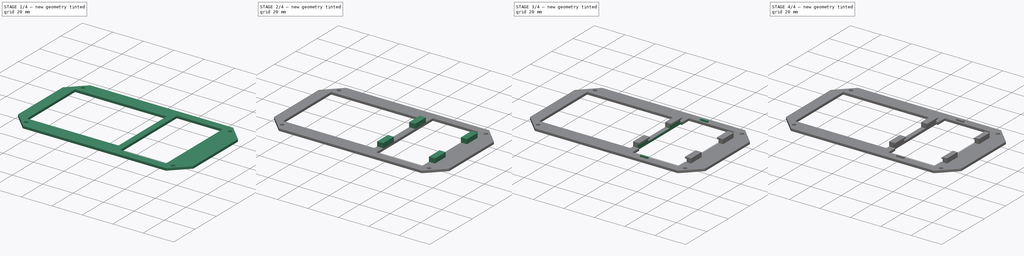
[diagram: build sequence overview — one tinted view per stage of 4, left to right]
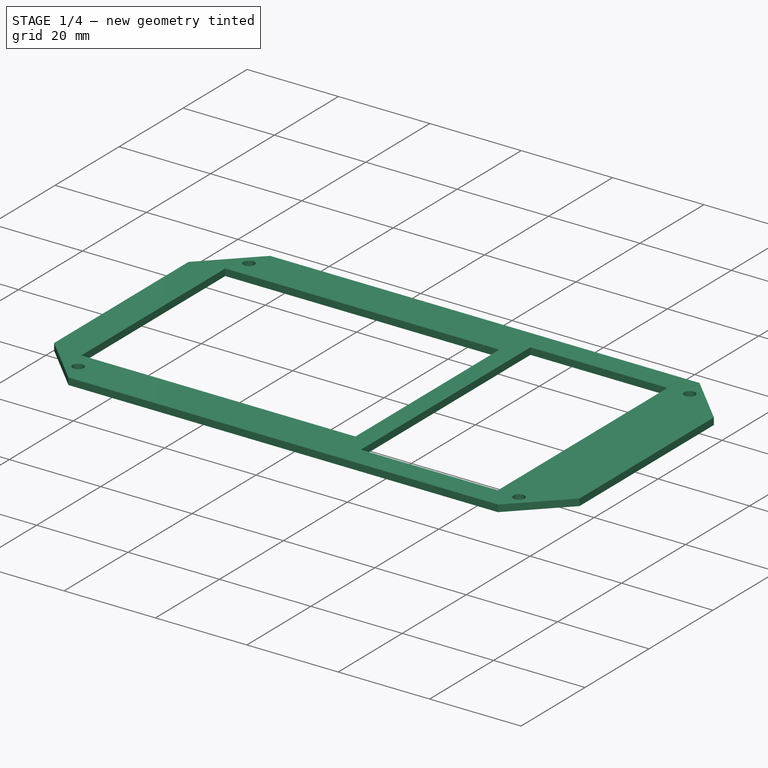
[diagram: stage 1 of 4 — iso view after this stage's code; geometry added in this stage tinted green]
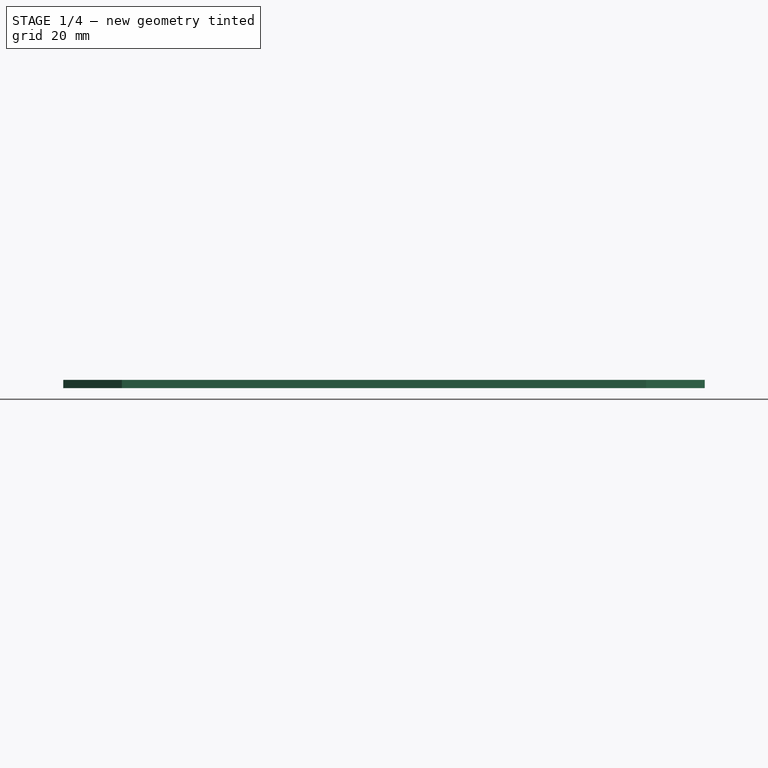
[diagram: stage 1 of 4 — front view after this stage's code; geometry added in this stage tinted green]
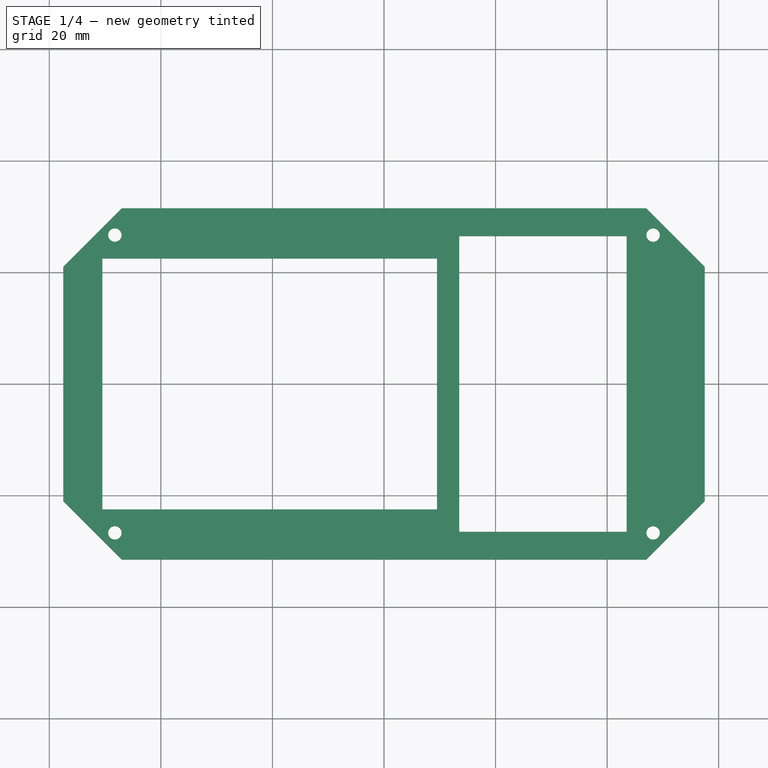
[diagram: stage 1 of 4 — top view after this stage's code; geometry added in this stage tinted green]
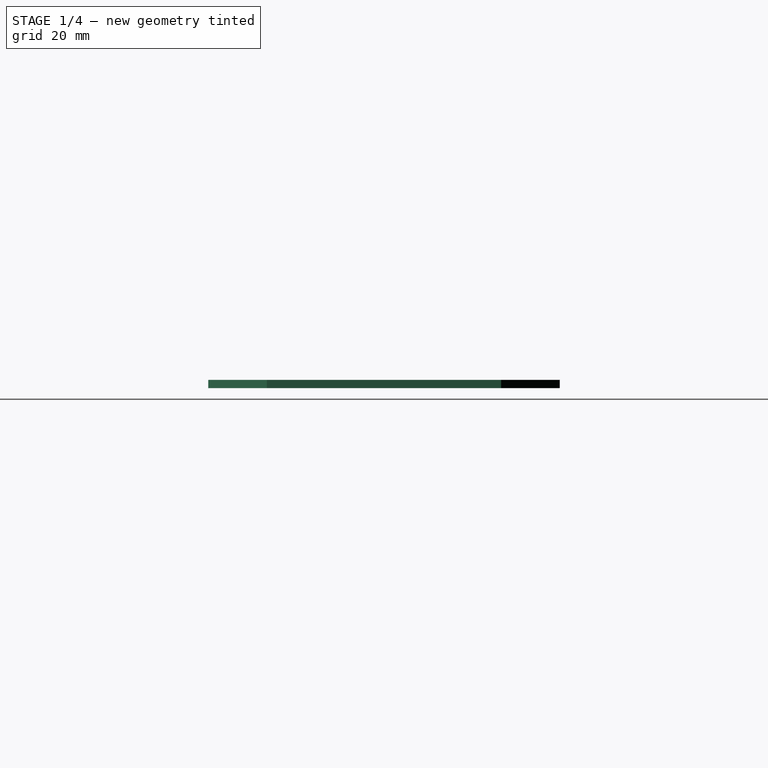
[diagram: stage 1 of 4 — right view after this stage's code; geometry added in this stage tinted green]
FCSTD DOCUMENT  (FreeCAD 0.16R6712 (Git))
Label: Soporte_interior
License: CreativeCommons Attribution-ShareAlike
LicenseURL: http://creativecommons.org/licenses/by-sa/4.0/
objects: Sketcher::SketchObject×5, PartDesign::Pad×3, PartDesign::Pocket×2, Part::MultiCommon×2, Part::MultiFuse×2, Part::Chamfer×1
note: 20 computed .brp shape members not serialized (recipe doc carries the construction recipe); baked Part::Feature solids carry a one-line shape summary decoded from their .brp

FEATURE [Sketcher::SketchObject] Sketch
  sketch-geometry (12):
    g0: LineSegment StartX=-47 StartY=31.5 StartZ=0 EndX=47 EndY=31.5 EndZ=0
    g1: LineSegment StartX=57.5 StartY=21 StartZ=0 EndX=57.5 EndY=-21 EndZ=0
    g2: LineSegment StartX=47 StartY=-31.5 StartZ=0 EndX=-47 EndY=-31.5 EndZ=0
    g3: LineSegment StartX=-57.5 StartY=-21 StartZ=0 EndX=-57.5 EndY=21 EndZ=0
    g4: Circle CenterX=-48.25 CenterY=26.7 CenterZ=0 NormalX=0 NormalY=0 NormalZ=1 Radius=1.2
    g5: Circle CenterX=48.25 CenterY=26.7 CenterZ=0 NormalX=0 NormalY=0 NormalZ=1 Radius=1.2
    g6: Circle CenterX=-48.25 CenterY=-26.7 CenterZ=0 NormalX=0 NormalY=0 NormalZ=1 Radius=1.2
    g7: Circle CenterX=48.25 CenterY=-26.7 CenterZ=0 NormalX=0 NormalY=0 NormalZ=1 Radius=1.2
    g8: LineSegment StartX=-47 StartY=31.5 StartZ=0 EndX=-57.5 EndY=21 EndZ=0
    g9: LineSegment StartX=47 StartY=31.5 StartZ=0 EndX=57.5 EndY=21 EndZ=0
    g10: LineSegment StartX=57.5 StartY=-21 StartZ=0 EndX=47 EndY=-31.5 EndZ=0
    g11: LineSegment StartX=-57.5 StartY=-21 StartZ=0 EndX=-47 EndY=-31.5 EndZ=0
  constraints (33):
    c: Horizontal(g0)
    c: Horizontal(g2)
    c: Vertical(g1)
    c: Vertical(g3)
    c: Equal(g4,g6)
    c: Equal(g6,g7)
    c: Equal(g7,g5)
    c: Radius(g5) = 1.2
    c: DistanceY(g6,g4) = 53.4
    c: Symmetric(g4,g6,g-1)
    c: Symmetric(g5,g7,g-1)
    c: DistanceY(g7,g5) = 53.4
    c: Symmetric(g6,g7,g-2)
    c: DistanceX(g6,g7) = 96.5
    c: Coincident(g8,g0)
    c: Coincident(g8,g3)
    c: Coincident(g9,g0)
    c: Coincident(g9,g1)
    c: Coincident(g10,g1)
    c: Coincident(g10,g2)
    c: Coincident(g11,g3)
    c: Coincident(g11,g2)
    c: Equal(g3,g1)
    c: Equal(g0,g2)
    c: Symmetric(g2,g2,g-2)
    c: Symmetric(g0,g2,g-1)
    c: Symmetric(g1,g1,g-1)
    c: Symmetric(g3,g3,g-1)
    c: DistanceX(g3,g1) = 115
    c: DistanceY(g2,g0) = 63
    c: Symmetric(g3,g1,g-2)
    c: DistanceY(g3,g3) = 42
    c: Angle(g8,g0) = 2.35619
FEATURE [PartDesign::Pad] Pad
  Length = 1.5
  Length2 = 100
  Sketch = -> Sketch
  Type = 0
FEATURE [Sketcher::SketchObject] Sketch001
  ExternalGeometry = -> [Pad]
  Placement = pos=(0,0,1.5) rot=(0,0,1;0rad)
  Support = -> Pad [Face14]
  sketch-geometry (8):
    g0: LineSegment StartX=-50.5 StartY=22.5 StartZ=0 EndX=9.5 EndY=22.5 EndZ=0
    g1: LineSegment StartX=9.5 StartY=22.5 StartZ=0 EndX=9.5 EndY=-22.5 EndZ=0
    g2: LineSegment StartX=9.5 StartY=-22.5 StartZ=0 EndX=-50.5 EndY=-22.5 EndZ=0
    g3: LineSegment StartX=-50.5 StartY=-22.5 StartZ=0 EndX=-50.5 EndY=22.5 EndZ=0
    g4: LineSegment StartX=13.5 StartY=26.5 StartZ=0 EndX=43.5 EndY=26.5 EndZ=0
    g5: LineSegment StartX=43.5 StartY=26.5 StartZ=0 EndX=43.5 EndY=-26.5 EndZ=0
    g6: LineSegment StartX=43.5 StartY=-26.5 StartZ=0 EndX=13.5 EndY=-26.5 EndZ=0
    g7: LineSegment StartX=13.5 StartY=-26.5 StartZ=0 EndX=13.5 EndY=26.5 EndZ=0
  constraints (24):
    c: Coincident(g0,g1)
    c: Coincident(g1,g2)
    c: Coincident(g2,g3)
    c: Coincident(g3,g0)
    c: Horizontal(g0)
    c: Horizontal(g2)
    c: Vertical(g1)
    c: Vertical(g3)
    c: DistanceX(g0,g0) = 60
    c: DistanceY(g1,g1) = 45
    c: Symmetric(g0,g1,g-1)
    c: Coincident(g4,g5)
    c: Coincident(g5,g6)
    c: Coincident(g6,g7)
    c: Coincident(g7,g4)
    c: Horizontal(g4)
    c: Horizontal(g6)
    c: Vertical(g5)
    c: Vertical(g7)
    c: Symmetric(g4,g6,g-1)
    c: DistanceX(g4,g4) = 30
    c: DistanceY(g5,g5) = 53
    c: DistanceX(g0,g4) = 4
    c: DistanceX(g-3,g0) = 7
FEATURE [PartDesign::Pocket] Pocket
  Length = 5
  Sketch = -> Sketch001
  Type = 0
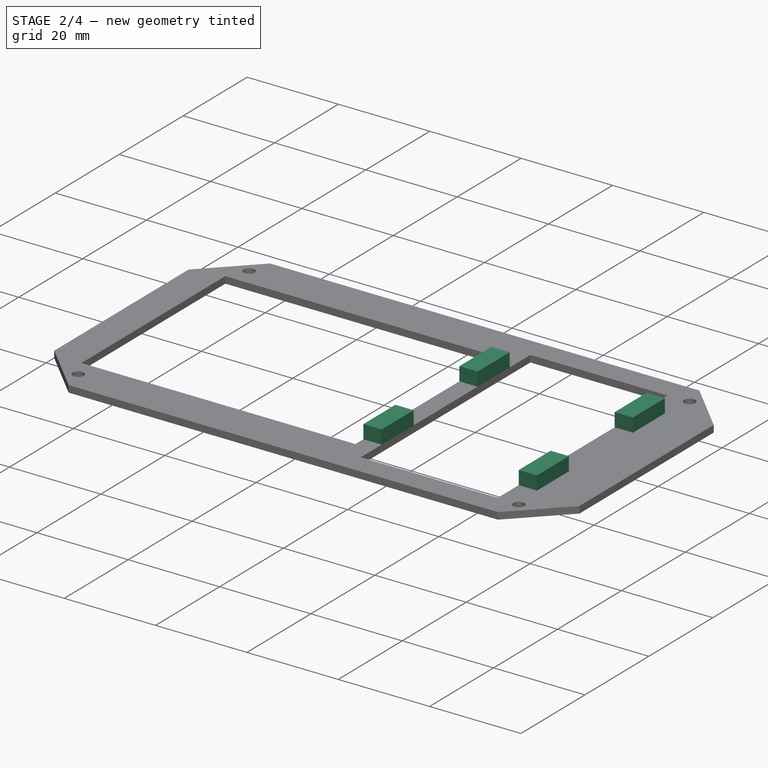
[diagram: stage 2 of 4 — iso view after this stage's code; geometry added in this stage tinted green]
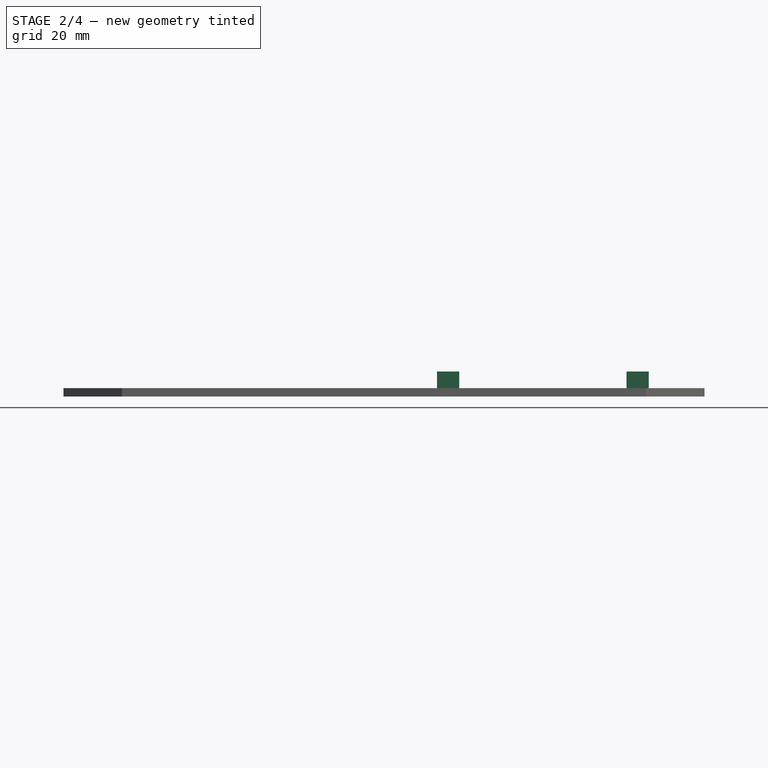
[diagram: stage 2 of 4 — front view after this stage's code; geometry added in this stage tinted green]
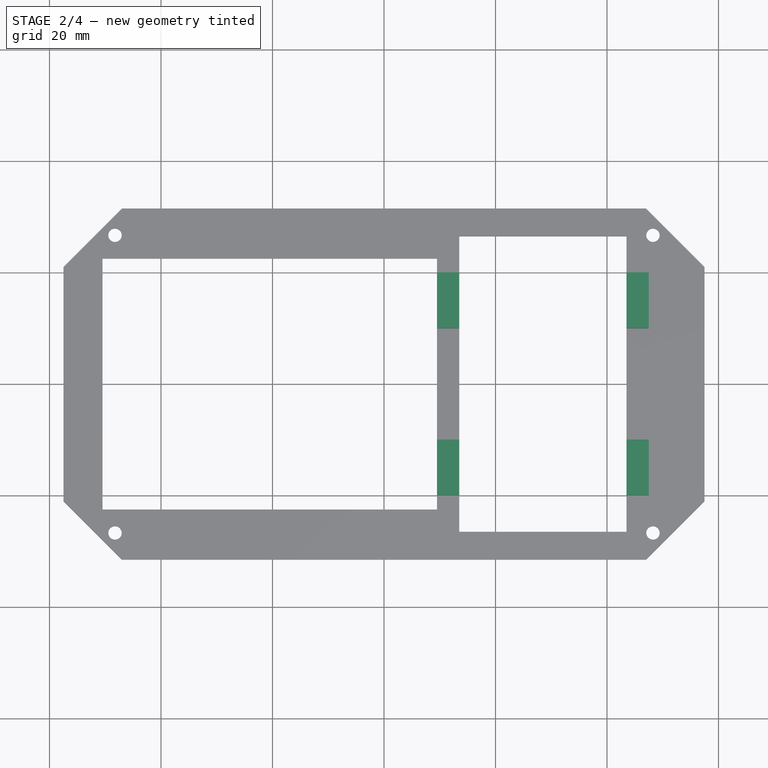
[diagram: stage 2 of 4 — top view after this stage's code; geometry added in this stage tinted green]
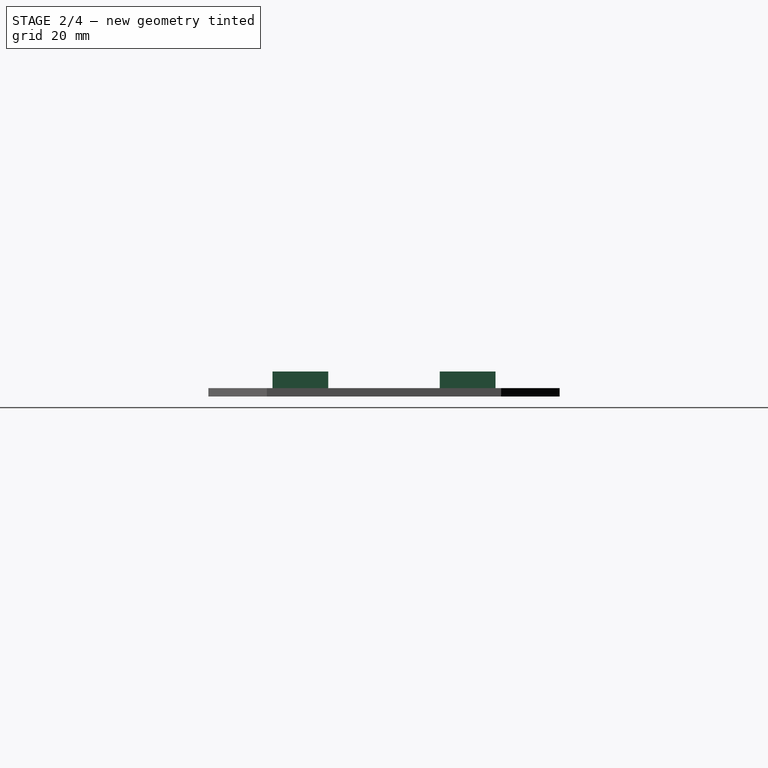
[diagram: stage 2 of 4 — right view after this stage's code; geometry added in this stage tinted green]
FEATURE [Part::MultiCommon] Common
  Shapes = -> [Pad,Pocket]
FEATURE [Sketcher::SketchObject] Sketch002
  ExternalGeometry = -> [Common]
  Placement = pos=(0,0,1.5) rot=(0,0,1;0rad)
  Support = -> Common [Face4]
  sketch-geometry (16):
    g0: LineSegment StartX=9.5 StartY=20 StartZ=0 EndX=13.5 EndY=20 EndZ=0
    g1: LineSegment StartX=13.5 StartY=20 StartZ=0 EndX=13.5 EndY=10 EndZ=0
    g2: LineSegment StartX=13.5 StartY=10 StartZ=0 EndX=9.5 EndY=10 EndZ=0
    g3: LineSegment StartX=9.5 StartY=10 StartZ=0 EndX=9.5 EndY=20 EndZ=0
    g4: LineSegment StartX=9.5 StartY=-10 StartZ=0 EndX=13.5 EndY=-10 EndZ=0
    g5: LineSegment StartX=13.5 StartY=-10 StartZ=0 EndX=13.5 EndY=-20 EndZ=0
    g6: LineSegment StartX=13.5 StartY=-20 StartZ=0 EndX=9.5 EndY=-20 EndZ=0
    g7: LineSegment StartX=9.5 StartY=-20 StartZ=0 EndX=9.5 EndY=-10 EndZ=0
    g8: LineSegment StartX=43.5 StartY=20 StartZ=0 EndX=47.5 EndY=20 EndZ=0
    g9: LineSegment StartX=47.5 StartY=20 StartZ=0 EndX=47.5 EndY=10 EndZ=0
    g10: LineSegment StartX=47.5 StartY=10 StartZ=0 EndX=43.5 EndY=10 EndZ=0
    g11: LineSegment StartX=43.5 StartY=10 StartZ=0 EndX=43.5 EndY=20 EndZ=0
    g12: LineSegment StartX=43.5 StartY=-10 StartZ=0 EndX=47.5 EndY=-10 EndZ=0
    g13: LineSegment StartX=47.5 StartY=-10 StartZ=0 EndX=47.5 EndY=-20 EndZ=0
    g14: LineSegment StartX=47.5 StartY=-20 StartZ=0 EndX=43.5 EndY=-20 EndZ=0
    g15: LineSegment StartX=43.5 StartY=-20 StartZ=0 EndX=43.5 EndY=-10 EndZ=0
  constraints (46):
    c: Coincident(g0,g1)
    c: Coincident(g1,g2)
    c: Coincident(g2,g3)
    c: Coincident(g3,g0)
    c: Horizontal(g0)
    c: Horizontal(g2)
    c: Vertical(g1)
    c: Vertical(g3)
    c: Coincident(g4,g5)
    c: Coincident(g5,g6)
    c: Coincident(g6,g7)
    c: Coincident(g7,g4)
    c: Horizontal(g4)
    c: Horizontal(g6)
    c: Vertical(g5)
    c: Vertical(g7)
    c: Coincident(g8,g9)
    c: Coincident(g9,g10)
    c: Coincident(g10,g11)
    c: Coincident(g11,g8)
    c: Horizontal(g8)
    c: Horizontal(g10)
    c: Vertical(g9)
    c: Vertical(g11)
    c: Coincident(g12,g13)
    c: Coincident(g13,g14)
    c: Coincident(g14,g15)
    c: Coincident(g15,g12)
    c: Horizontal(g12)
    c: Horizontal(g14)
    c: Vertical(g13)
    c: Vertical(g15)
    c: Symmetric(g1,g4,g-1)
    c: Symmetric(g9,g12,g-1)
    c: Equal(g0,g8)
    c: Equal(g8,g12)
    c: Equal(g12,g4)
    c: Equal(g1,g9)
    c: Equal(g9,g13)
    c: Equal(g13,g5)
    c: DistanceY(g9,g9) = 10
    c: DistanceY(g12,g9) = 20
    c: DistanceY(g4,g1) = 20
    c: DistanceX(g0,g0) = 4
    c: DistanceX(g0,g8) = 30
    c: PointOnObject(g0,g-3)
FEATURE [PartDesign::Pad] Pad001
  Length = 3
  Length2 = 100
  Sketch = -> Sketch002
  Type = 0
FEATURE [Part::MultiFuse] Fusion
  Shapes = -> [Pad001,Common]
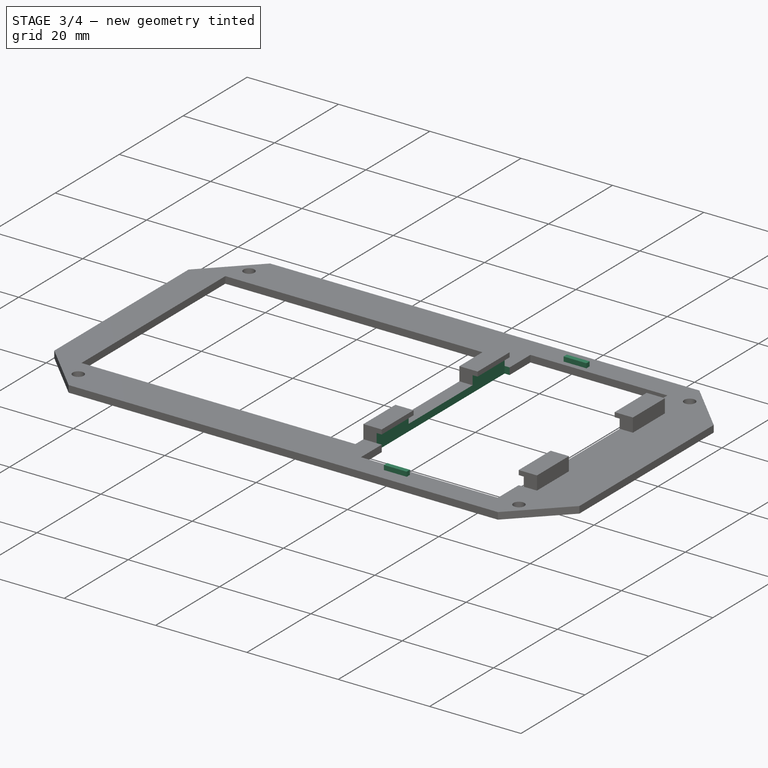
[diagram: stage 3 of 4 — iso view after this stage's code; geometry added in this stage tinted green]
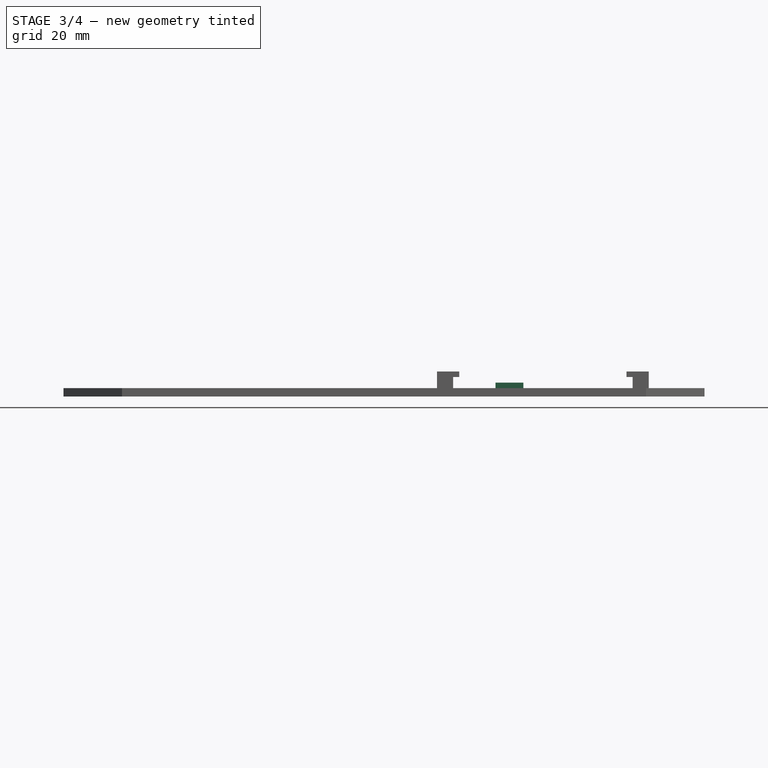
[diagram: stage 3 of 4 — front view after this stage's code; geometry added in this stage tinted green]
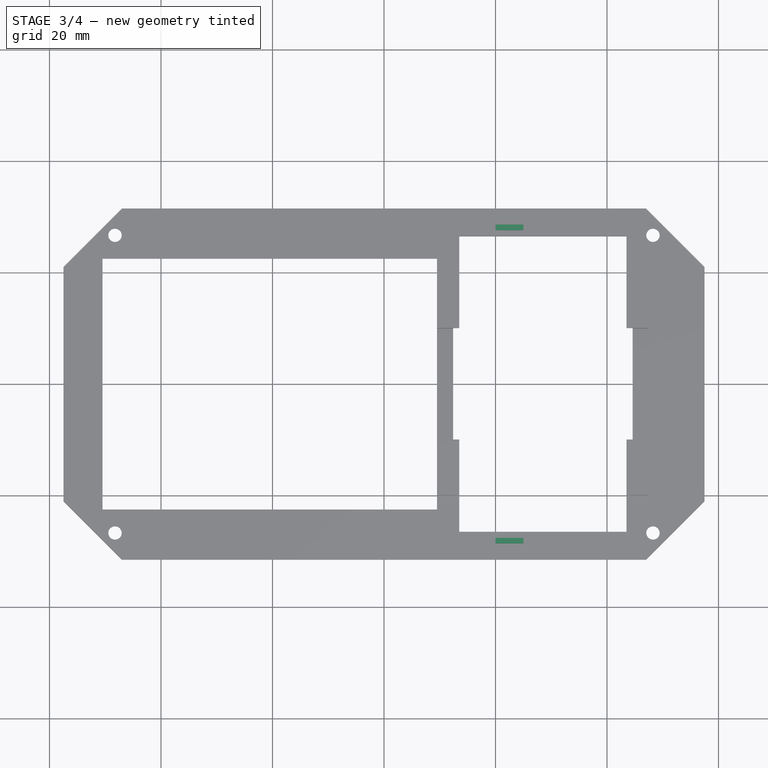
[diagram: stage 3 of 4 — top view after this stage's code; geometry added in this stage tinted green]
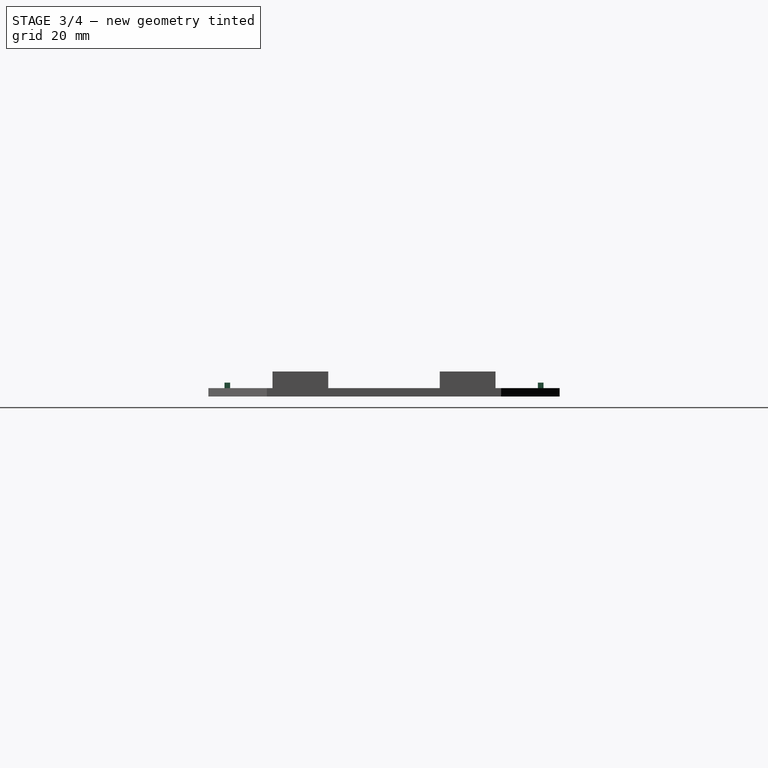
[diagram: stage 3 of 4 — right view after this stage's code; geometry added in this stage tinted green]
FEATURE [Sketcher::SketchObject] Sketch003
  ExternalGeometry = -> [Fusion]
  Placement = pos=(0,0,0) rot=(1,0,0;3.14159rad)
  Support = -> Fusion [Face8]
  sketch-geometry (4):
    g0: LineSegment StartX=12.4 StartY=20 StartZ=0 EndX=44.6 EndY=20 EndZ=0
    g1: LineSegment StartX=44.6 StartY=20 StartZ=0 EndX=44.6 EndY=-20 EndZ=0
    g2: LineSegment StartX=44.6 StartY=-20 StartZ=0 EndX=12.4 EndY=-20 EndZ=0
    g3: LineSegment StartX=12.4 StartY=-20 StartZ=0 EndX=12.4 EndY=20 EndZ=0
  constraints (12):
    c: Coincident(g0,g1)
    c: Coincident(g1,g2)
    c: Coincident(g2,g3)
    c: Coincident(g3,g0)
    c: Horizontal(g0)
    c: Horizontal(g2)
    c: Vertical(g1)
    c: Vertical(g3)
    c: Symmetric(g0,g1,g-1)
    c: DistanceX(g0,g0) = 32.2
    c: DistanceY(g1,g1) = 40
    c: DistanceX(g0,g-3) = 1.1
FEATURE [PartDesign::Pocket] Pocket001
  Length = 3.5
  Sketch = -> Sketch003
  Type = 0
FEATURE [Part::MultiCommon] Common001
  Shapes = -> [Fusion,Pocket001]
FEATURE [Sketcher::SketchObject] Sketch004
  Placement = pos=(0,0,1.5) rot=(0,0,1;0rad)
  Support = -> Common001 [Face11]
  sketch-geometry (8):
    g0: LineSegment StartX=20 StartY=28.6 StartZ=0 EndX=25 EndY=28.6 EndZ=0
    g1: LineSegment StartX=25 StartY=28.6 StartZ=0 EndX=25 EndY=27.6 EndZ=0
    g2: LineSegment StartX=25 StartY=27.6 StartZ=0 EndX=20 EndY=27.6 EndZ=0
    g3: LineSegment StartX=20 StartY=27.6 StartZ=0 EndX=20 EndY=28.6 EndZ=0
    g4: LineSegment StartX=20 StartY=-27.6 StartZ=0 EndX=25 EndY=-27.6 EndZ=0
    g5: LineSegment StartX=25 StartY=-27.6 StartZ=0 EndX=25 EndY=-28.6 EndZ=0
    g6: LineSegment StartX=25 StartY=-28.6 StartZ=0 EndX=20 EndY=-28.6 EndZ=0
    g7: LineSegment StartX=20 StartY=-28.6 StartZ=0 EndX=20 EndY=-27.6 EndZ=0
  constraints (23):
    c: Coincident(g0,g1)
    c: Coincident(g1,g2)
    c: Coincident(g2,g3)
    c: Coincident(g3,g0)
    c: Horizontal(g0)
    c: Horizontal(g2)
    c: Vertical(g1)
    c: Vertical(g3)
    c: Coincident(g4,g5)
    c: Coincident(g5,g6)
    c: Coincident(g6,g7)
    c: Coincident(g7,g4)
    c: Horizontal(g4)
    c: Horizontal(g6)
    c: Vertical(g5)
    c: Vertical(g7)
    c: Equal(g1,g5)
    c: Equal(g2,g6)
    c: Symmetric(g4,g1,g-1)
    c: DistanceX(g0,g0) = 5
    c: DistanceY(g1,g0) = 1
    c: DistanceY(g4,g1) = 55.2
    c: DistanceX(g-1,g0) = 20
FEATURE [PartDesign::Pad] Pad002
  Length = 1
  Length2 = 100
  Sketch = -> Sketch004
  Type = 0
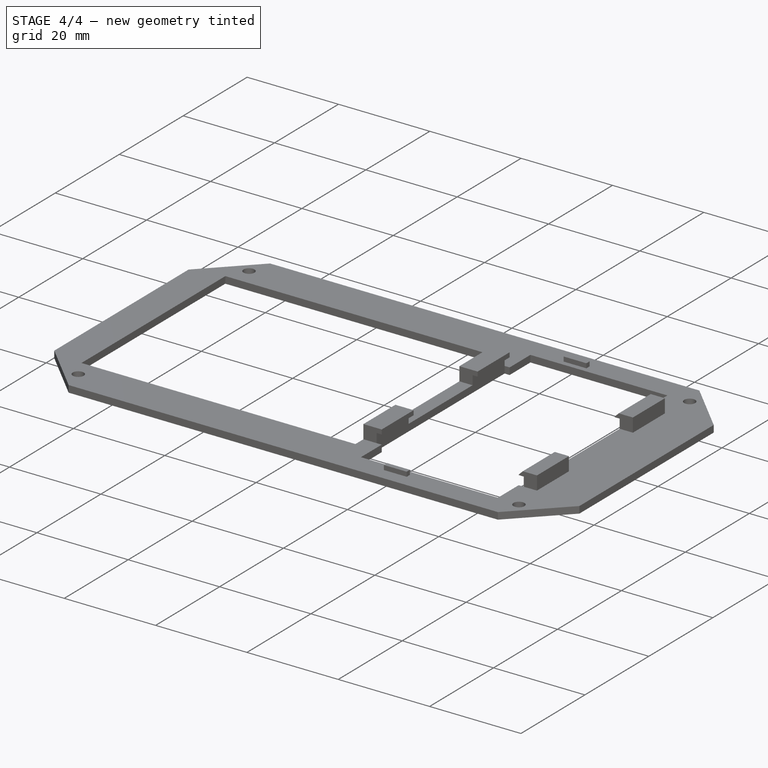
[diagram: stage 4 of 4 — iso view after this stage's code; geometry added in this stage tinted green]
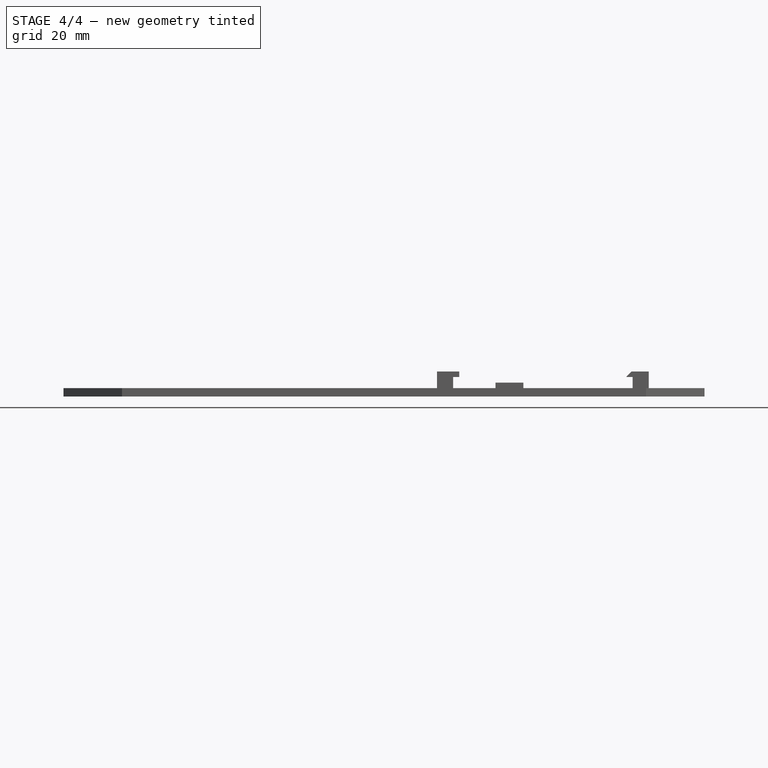
[diagram: stage 4 of 4 — front view after this stage's code; geometry added in this stage tinted green]
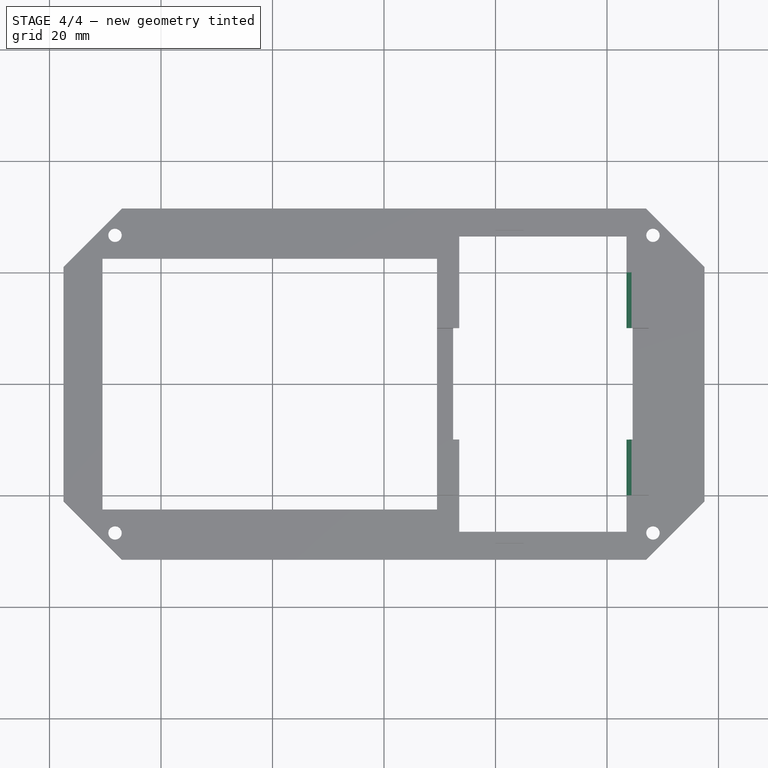
[diagram: stage 4 of 4 — top view after this stage's code; geometry added in this stage tinted green]
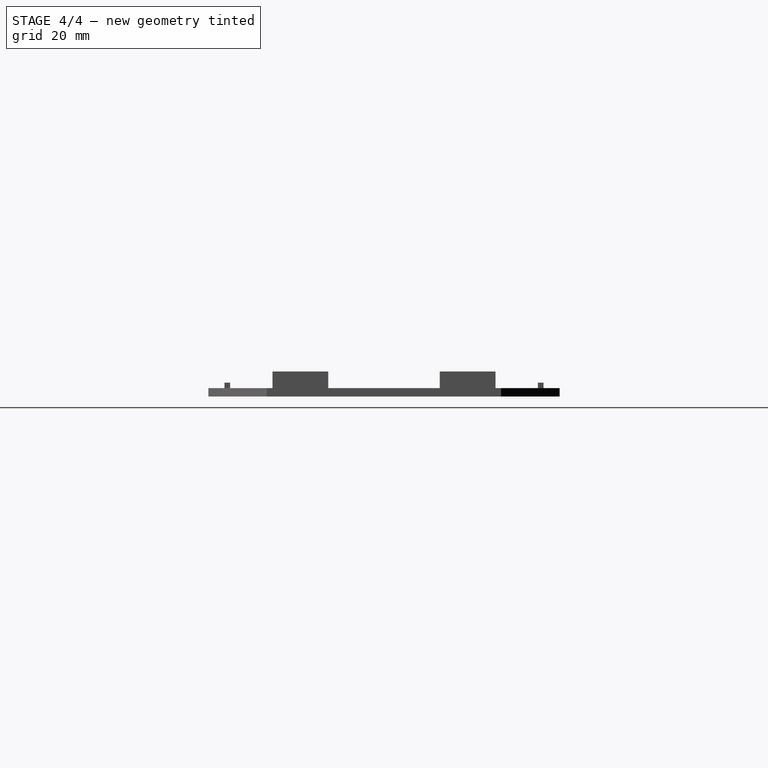
[diagram: stage 4 of 4 — right view after this stage's code; geometry added in this stage tinted green]
FEATURE [Part::MultiFuse] Fusion001
  Shapes = -> [Pad002,Common001]
FEATURE [Part::Chamfer] Chamfer
  Base = -> Fusion001
  Edges = 2 edges r=0.9: [Edge156,Edge175]
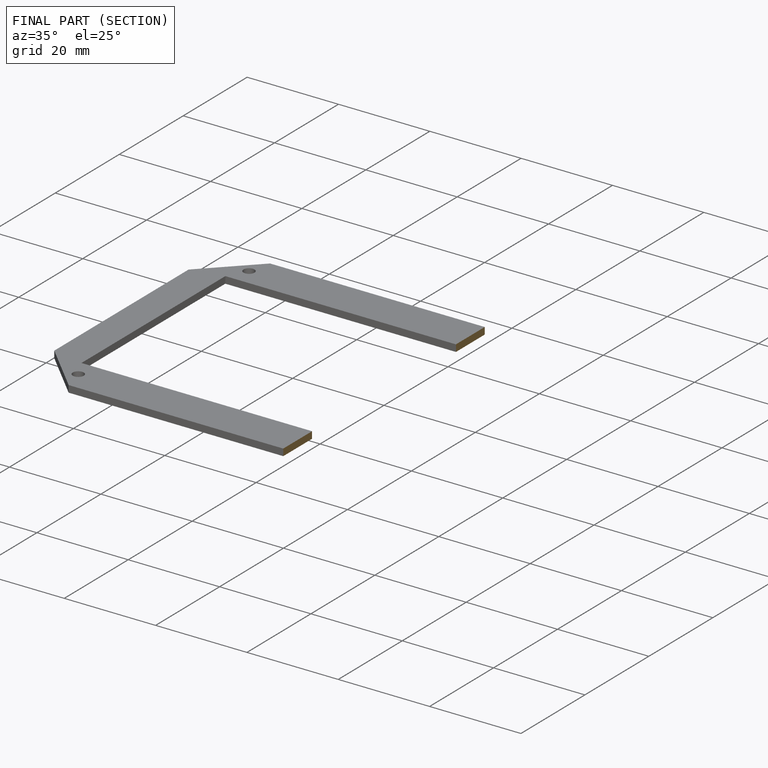
[diagram: finished part — half-section view (interior)]
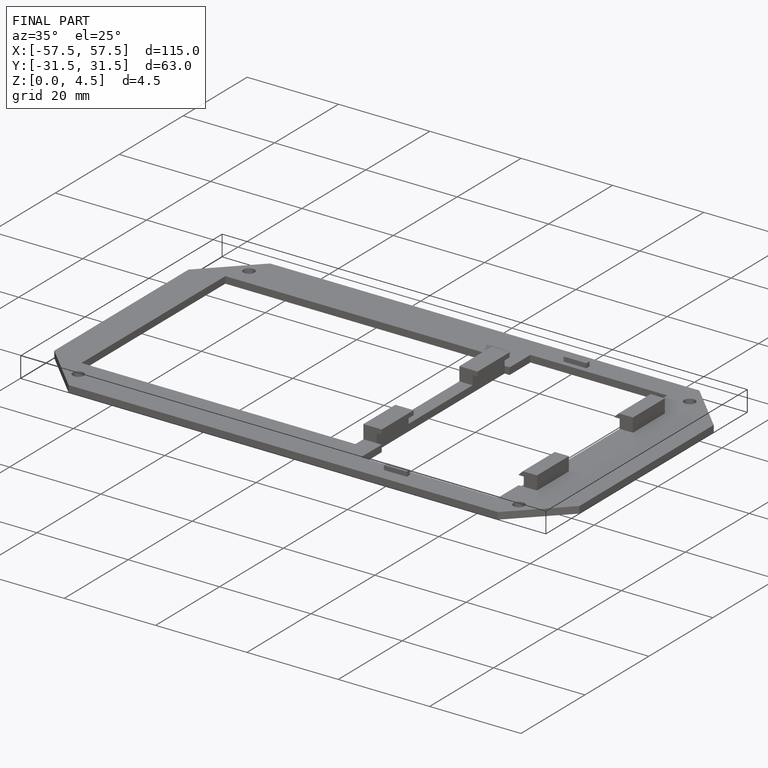
[diagram: finished part — iso view with bounding-box wireframe]
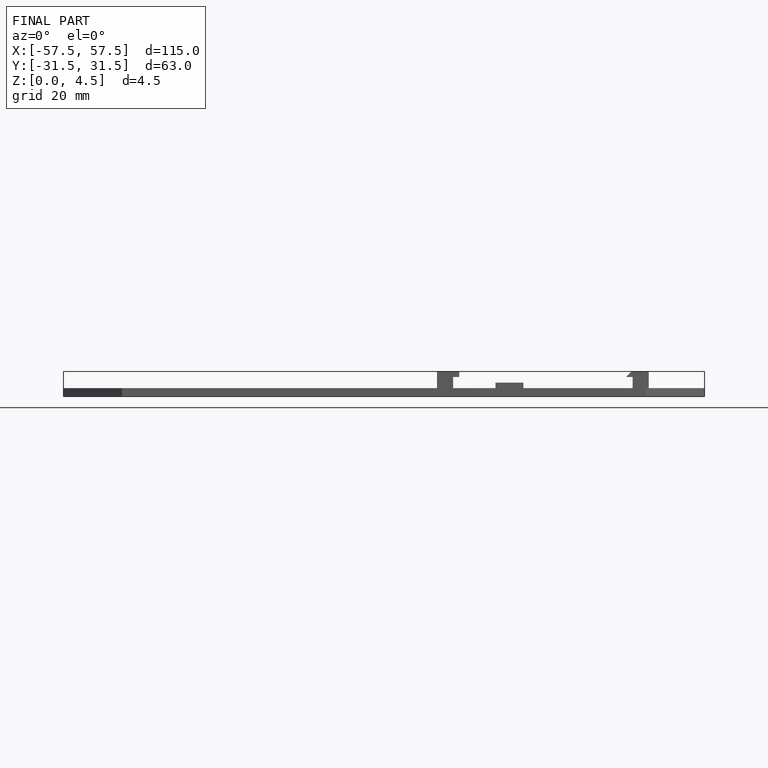
[diagram: finished part — front view with bounding-box wireframe]
